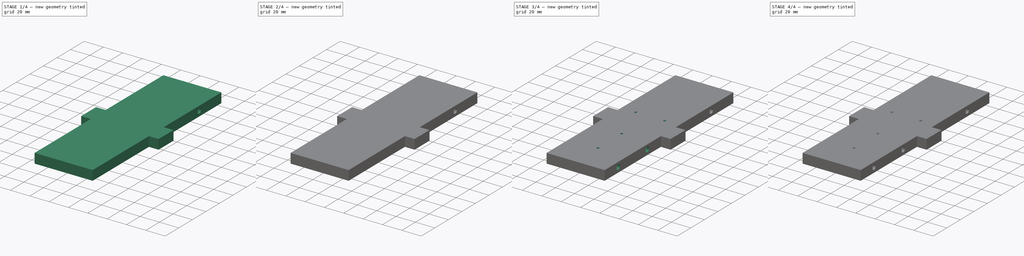
[diagram: build sequence overview — one tinted view per stage of 4, left to right]
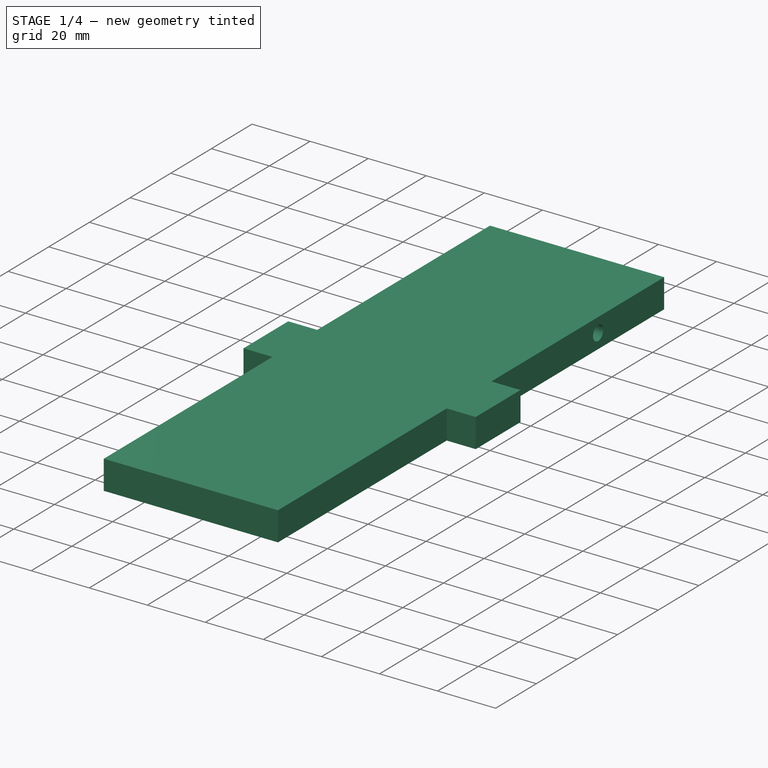
[diagram: stage 1 of 4 — iso view after this stage's code; geometry added in this stage tinted green]
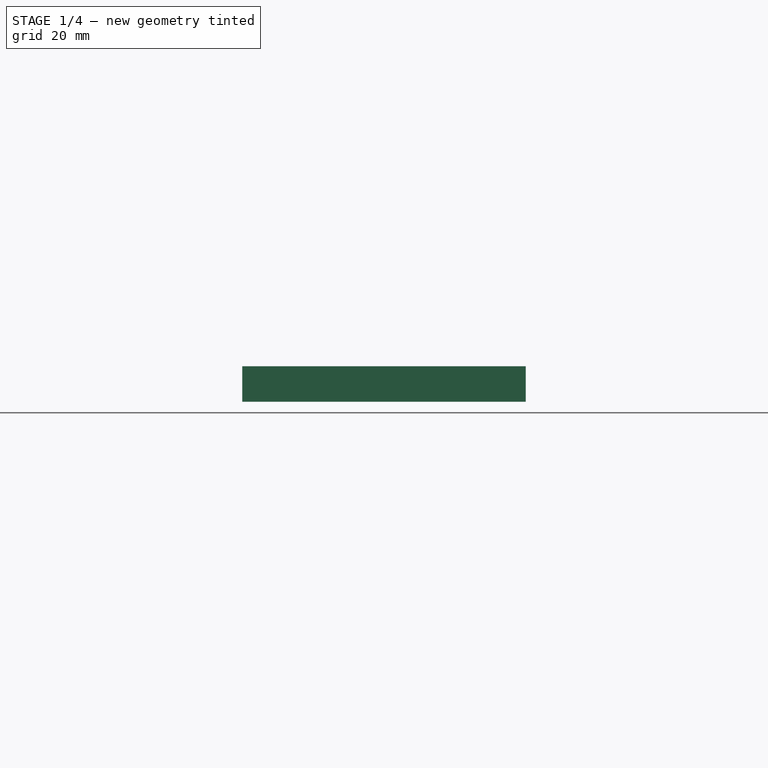
[diagram: stage 1 of 4 — front view after this stage's code; geometry added in this stage tinted green]
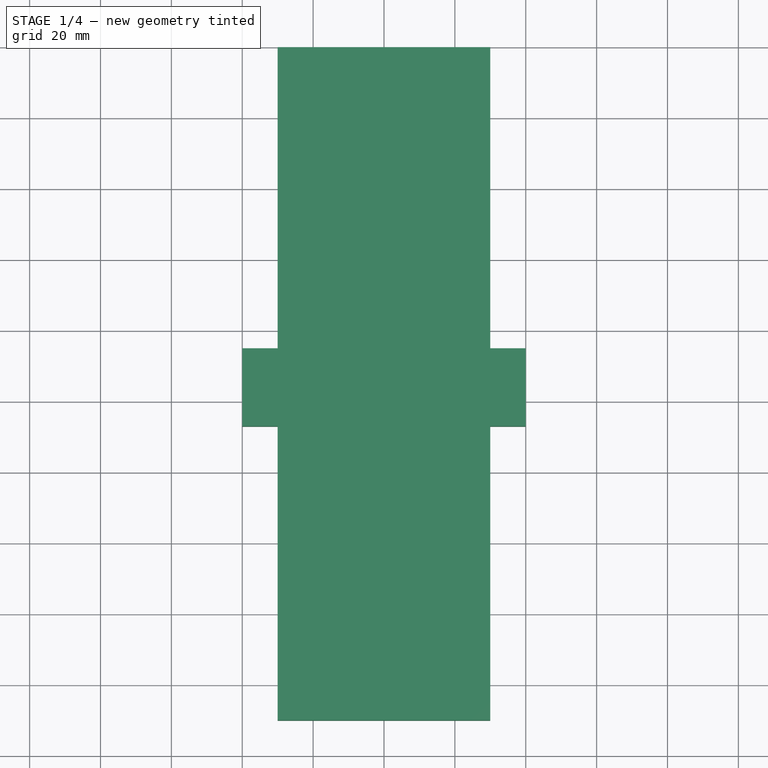
[diagram: stage 1 of 4 — top view after this stage's code; geometry added in this stage tinted green]
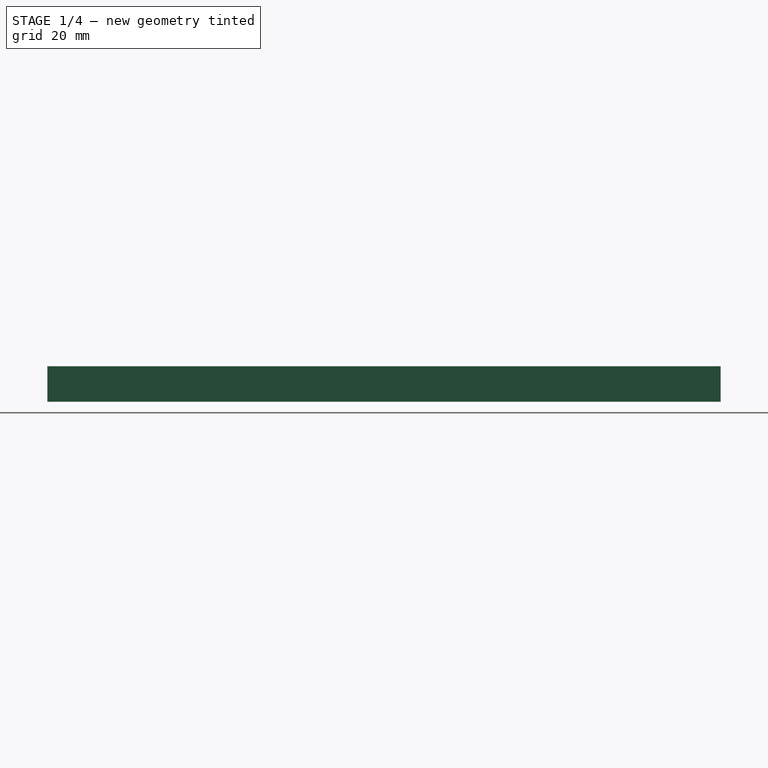
[diagram: stage 1 of 4 — right view after this stage's code; geometry added in this stage tinted green]
FCSTD DOCUMENT  (FreeCAD 0.19R)
Label: chassis
License: All rights reserved
LicenseURL: http://en.wikipedia.org/wiki/All_rights_reserved
objects: Sketcher::SketchObject×9, PartDesign::Pocket×8, PartDesign::Pad×1, PartDesign::Body×1
note: 28 computed .brp shape members not serialized (recipe doc carries the construction recipe); baked Part::Feature solids carry a one-line shape summary decoded from their .brp

FEATURE [Sketcher::SketchObject] Sketch
  MapMode = 5
  Support = -> [XY_Plane]
  sketch-geometry (12):
    g0: LineSegment StartX=30 StartY=-190 StartZ=0 EndX=30 EndY=-107 EndZ=0
    g1: LineSegment StartX=30 StartY=-107 StartZ=0 EndX=40 EndY=-107 EndZ=0
    g2: LineSegment StartX=40 StartY=-107 StartZ=0 EndX=40 EndY=-85 EndZ=0
    g3: LineSegment StartX=40 StartY=-85 StartZ=0 EndX=30 EndY=-85 EndZ=0
    g4: LineSegment StartX=30 StartY=-85 StartZ=0 EndX=30 EndY=0 EndZ=0
    g5: LineSegment StartX=30 StartY=-190 StartZ=0 EndX=-30 EndY=-190 EndZ=0
    g6: LineSegment StartX=-30 StartY=-190 StartZ=0 EndX=-30 EndY=-107 EndZ=0
    g7: LineSegment StartX=-30 StartY=-107 StartZ=0 EndX=-40 EndY=-107 EndZ=0
    g8: LineSegment StartX=-40 StartY=-107 StartZ=0 EndX=-40 EndY=-85 EndZ=0
    g9: LineSegment StartX=-40 StartY=-85 StartZ=0 EndX=-30 EndY=-85 EndZ=0
    g10: LineSegment StartX=-30 StartY=-85 StartZ=0 EndX=-30 EndY=0 EndZ=0
    g11: LineSegment StartX=-30 StartY=0 StartZ=0 EndX=30 EndY=0 EndZ=0
  constraints (35):
    c: Vertical(g0)
    c: Coincident(g1,g0)
    c: Coincident(g2,g1)
    c: Vertical(g2)
    c: Coincident(g3,g2)
    c: Horizontal(g3)
    c: Vertical(g4)
    c: DistanceY(g4,g4) = 85
    c: Coincident(g3,g4)
    c: Horizontal(g1)
    c: Equal(g3,g1)
    c: DistanceX(g3,g3) = 10
    c: DistanceY(g2,g2) = 22
    c: DistanceY(g0,g0) = 83
    c: Coincident(g5,g0)
    c: Horizontal(g5)
    c: Coincident(g6,g5)
    c: Vertical(g6)
    c: Coincident(g7,g6)
    c: Coincident(g8,g7)
    c: Vertical(g8)
    c: Horizontal(g9)
    c: Coincident(g10,g9)
    c: Vertical(g10)
    c: Coincident(g11,g10)
    c: Coincident(g11,g4)
    c: Horizontal(g11)
    c: DistanceX(g5,g5) = 60
    c: Equal(g5,g11)
    c: Equal(g4,g10)
    c: Equal(g8,g2)
    c: Coincident(g8,g9)
    c: Equal(g3,g9)
    c: Horizontal(g7)
    c: Symmetric(g10,g4,g-1)
FEATURE [PartDesign::Pad] Pad
  Length = 10
  Length2 = 100
  Profile = -> Sketch
  Type = 0
FEATURE [Sketcher::SketchObject] Sketch001
  MapMode = 5
  Placement = pos=(30,0,0) rot=(0.57735,0.57735,0.57735;2.0944rad)
  Support = -> [Pad]
  sketch-geometry (1):
    g0: Circle CenterX=-32.5 CenterY=5 CenterZ=0 NormalX=0 NormalY=0 NormalZ=1 AngleXU=0 Radius=2.5
  constraints (3):
    c: DistanceY(g-1,g0) = 5
    c: Diameter(g0) = 5
    c: DistanceX(g0,g-1) = 32.5
FEATURE [PartDesign::Pocket] Pocket
  BaseFeature = -> Pad
  Length = 10
  Length2 = 100
  Profile = -> Sketch001
  Type = 0
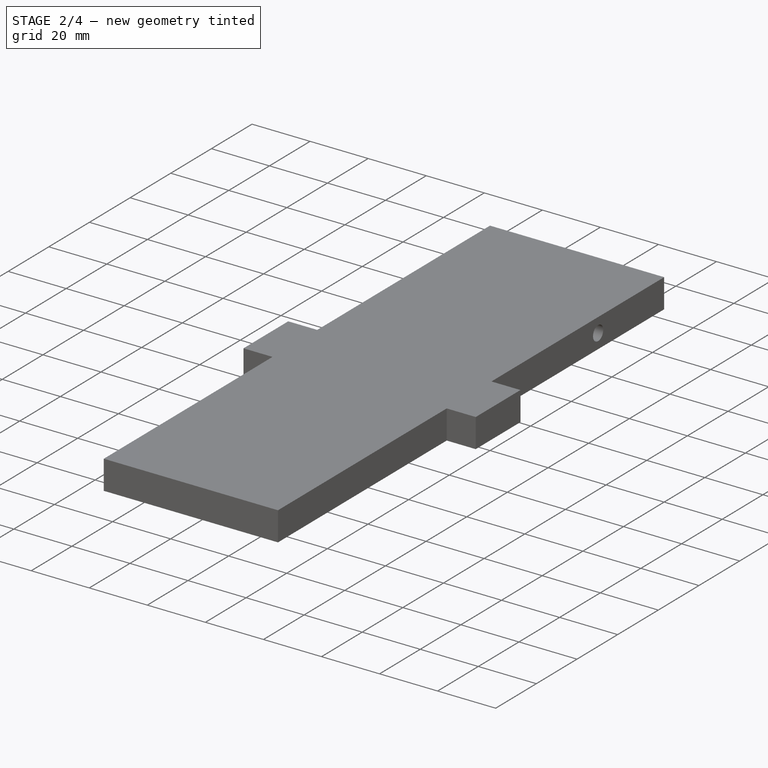
[diagram: stage 2 of 4 — iso view after this stage's code; geometry added in this stage tinted green]
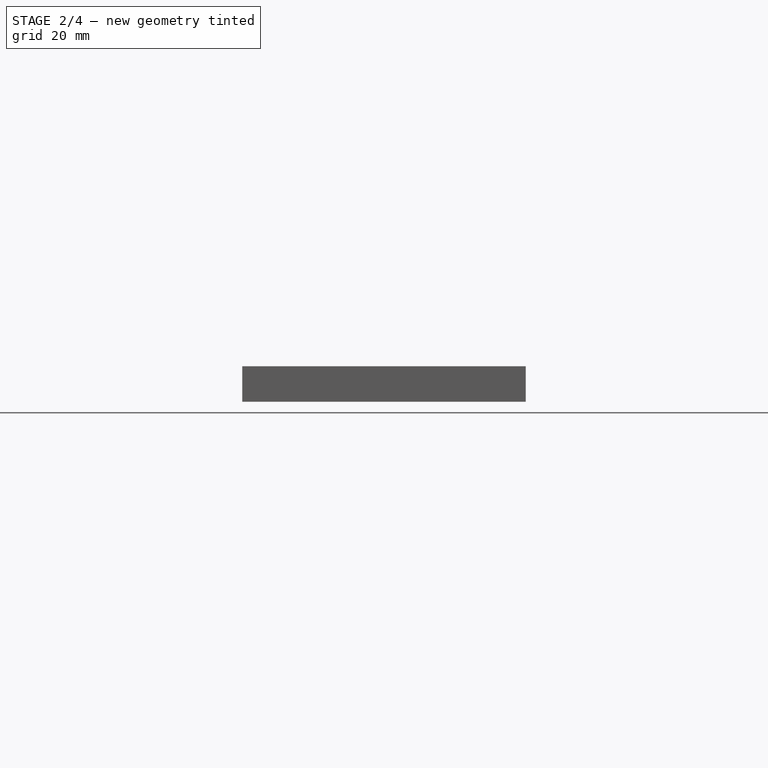
[diagram: stage 2 of 4 — front view after this stage's code; geometry added in this stage tinted green]
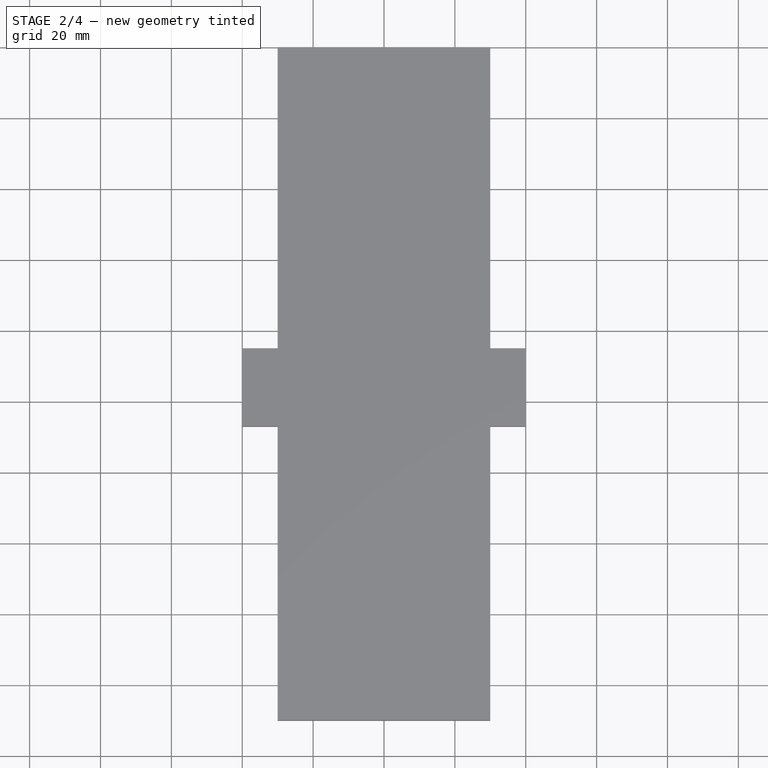
[diagram: stage 2 of 4 — top view after this stage's code; geometry added in this stage tinted green]
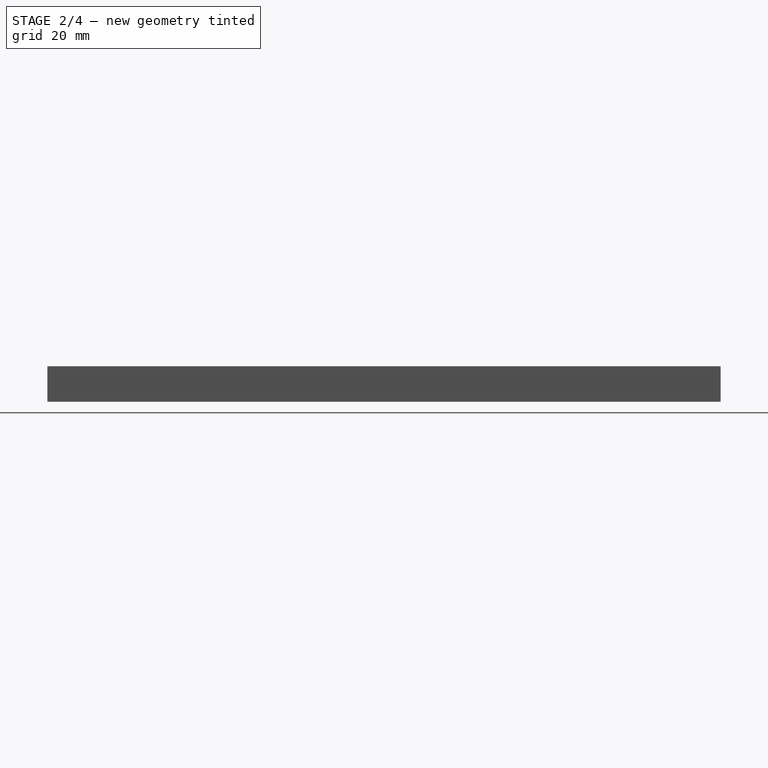
[diagram: stage 2 of 4 — right view after this stage's code; geometry added in this stage tinted green]
FEATURE [Sketcher::SketchObject] Sketch002
  MapMode = 5
  Placement = pos=(-30,0,0) rot=(0.57735,-0.57735,-0.57735;2.0944rad)
  Support = -> [Pocket]
  sketch-geometry (1):
    g0: Circle CenterX=32.5 CenterY=5 CenterZ=0 NormalX=0 NormalY=0 NormalZ=1 AngleXU=0 Radius=2.5
  constraints (3):
    c: DistanceX(g-1,g0) = 32.5
    c: DistanceY(g-1,g0) = 5
    c: Diameter(g0) = 5
FEATURE [PartDesign::Pocket] Pocket001
  BaseFeature = -> Pocket
  Length = 10
  Length2 = 100
  Profile = -> Sketch002
  Type = 0
FEATURE [Sketcher::SketchObject] Sketch003
  MapMode = 5
  Placement = pos=(-30,0,0) rot=(0.57735,-0.57735,-0.57735;2.0944rad)
  Support = -> [Pocket001]
  sketch-geometry (2):
    g0: Circle CenterX=127 CenterY=5 CenterZ=0 NormalX=0 NormalY=0 NormalZ=1 AngleXU=0 Radius=2.5
    g1: Circle CenterX=170 CenterY=5 CenterZ=0 NormalX=0 NormalY=0 NormalZ=1 AngleXU=0 Radius=2.5
  constraints (6):
    c: DistanceY(g-1,g0) = 5
    c: DistanceY(g-1,g1) = 5
    c: Diameter(g0) = 5
    c: Diameter(g1) = 5
    c: DistanceX(g-1,g0) = 127
    c: DistanceX(g-1,g1) = 170
FEATURE [PartDesign::Pocket] Pocket002
  BaseFeature = -> Pocket001
  Length = 10
  Length2 = 100
  Profile = -> Sketch003
  Type = 0
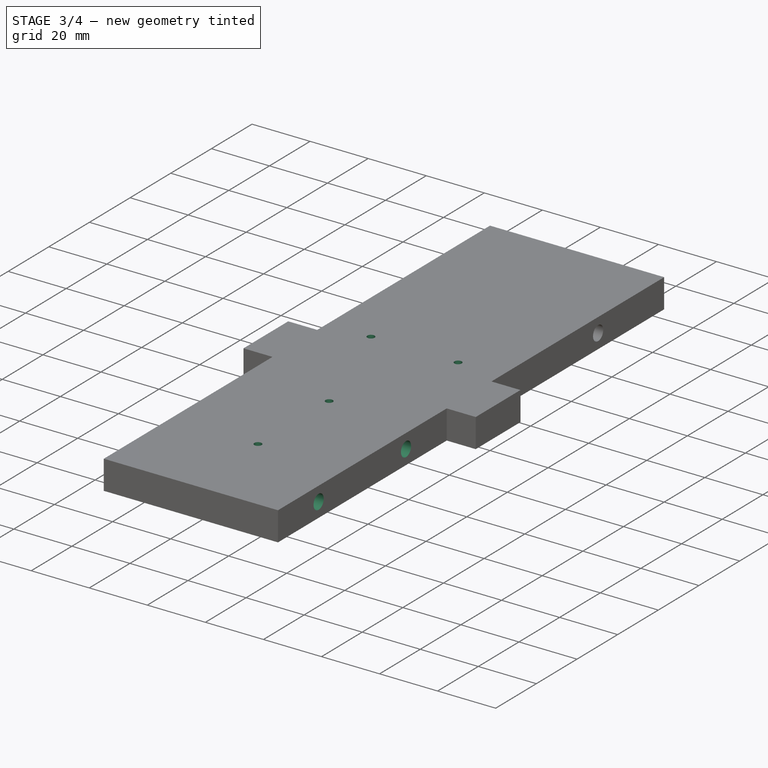
[diagram: stage 3 of 4 — iso view after this stage's code; geometry added in this stage tinted green]
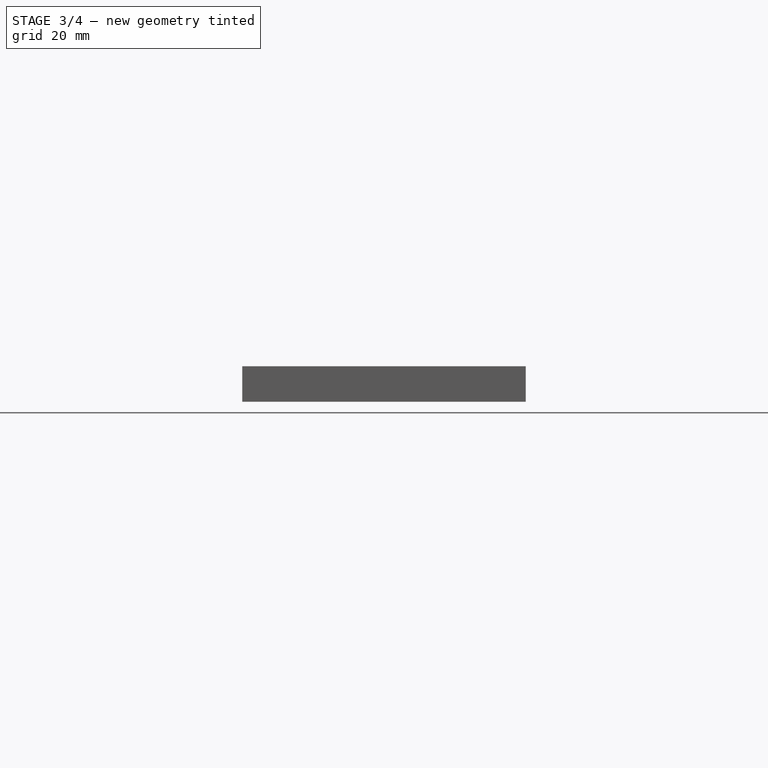
[diagram: stage 3 of 4 — front view after this stage's code; geometry added in this stage tinted green]
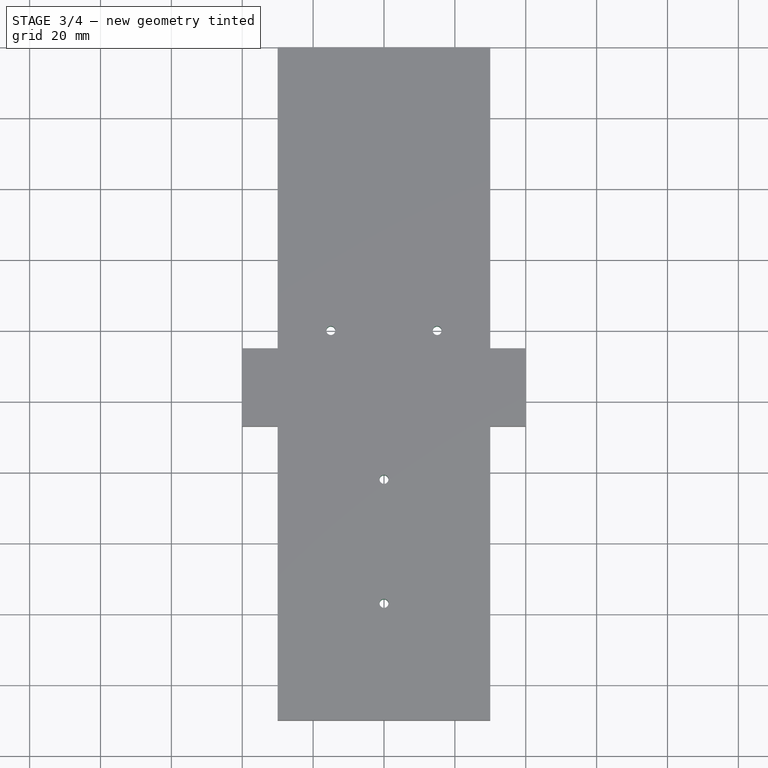
[diagram: stage 3 of 4 — top view after this stage's code; geometry added in this stage tinted green]
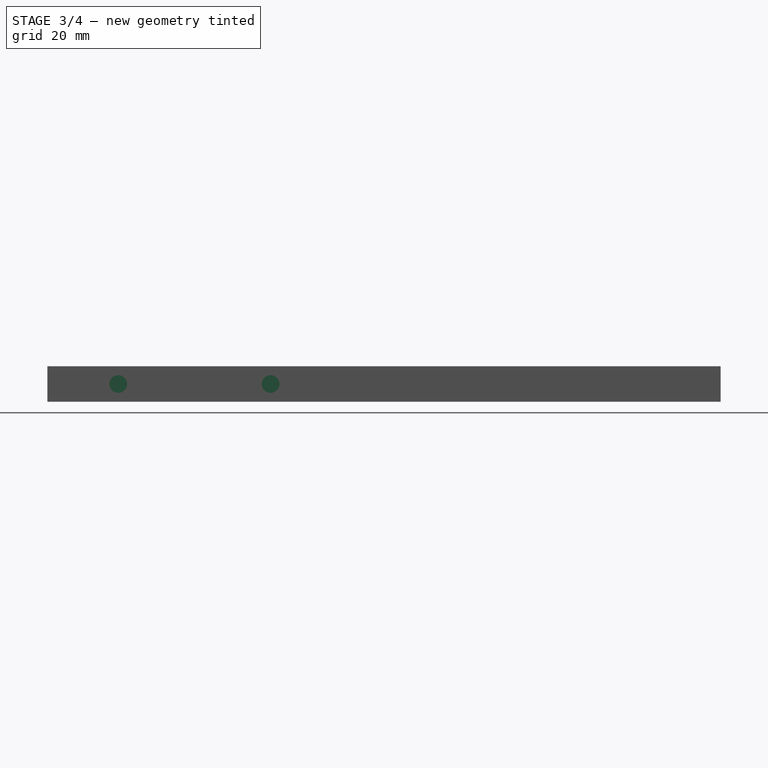
[diagram: stage 3 of 4 — right view after this stage's code; geometry added in this stage tinted green]
FEATURE [Sketcher::SketchObject] Sketch004
  MapMode = 5
  Placement = pos=(30,0,0) rot=(0.57735,0.57735,0.57735;2.0944rad)
  Support = -> [Pocket002]
  sketch-geometry (2):
    g0: Circle CenterX=-170 CenterY=5 CenterZ=0 NormalX=0 NormalY=0 NormalZ=1 AngleXU=0 Radius=2.5
    g1: Circle CenterX=-127 CenterY=5 CenterZ=0 NormalX=0 NormalY=0 NormalZ=1 AngleXU=0 Radius=2.5
  constraints (6):
    c: Diameter(g0) = 5
    c: Diameter(g1) = 5
    c: DistanceY(g-1,g1) = 5
    c: DistanceY(g-1,g0) = 5
    c: DistanceX(g1,g-1) = 127
    c: DistanceX(g0,g-1) = 170
FEATURE [PartDesign::Pocket] Pocket003
  BaseFeature = -> Pocket002
  Length = 10
  Length2 = 100
  Profile = -> Sketch004
  Type = 0
FEATURE [Sketcher::SketchObject] Sketch005
  ExternalGeometry = -> [Pocket003]
  MapMode = 5
  Placement = pos=(0,0,0) rot=(1,0,0;3.14159rad)
  Support = -> [Pocket003]
  sketch-geometry (5):
    g0: Circle CenterX=15 CenterY=80 CenterZ=0 NormalX=0 NormalY=0 NormalZ=1 AngleXU=0 Radius=1.25
    g1: Circle CenterX=-15 CenterY=80 CenterZ=0 NormalX=0 NormalY=0 NormalZ=1 AngleXU=0 Radius=1.25
    g2: LineSegment [constr] StartX=0 StartY=0 StartZ=0 EndX=0 EndY=190 EndZ=0
    g3: Circle CenterX=0 CenterY=122 CenterZ=0 NormalX=0 NormalY=0 NormalZ=1 AngleXU=0 Radius=1.25
    g4: Circle CenterX=0 CenterY=157 CenterZ=0 NormalX=0 NormalY=0 NormalZ=1 AngleXU=0 Radius=1.25
  constraints (15):
    c: Diameter(g0) = 2.5
    c: Diameter(g1) = 2.5
    c: DistanceX(g-1,g0) = 15
    c: DistanceX(g1,g-1) = 15
    c: DistanceY(g-1,g0) = 80
    c: DistanceY(g-1,g1) = 80
    c: Coincident(g2,g-1)
    c: Vertical(g2)
    c: Distance(g2) = 190
    c: Diameter(g4) = 2.5
    c: Diameter(g3) = 2.5
    c: PointOnObject(g3,g2)
    c: PointOnObject(g4,g2)
    c: Distance(g3,g-3) = 15
    c: Distance(g4,g-3) = 50
FEATURE [PartDesign::Pocket] Pocket004
  BaseFeature = -> Pocket003
  Length = 10
  Length2 = 100
  Profile = -> Sketch005
  Type = 0
FEATURE [Sketcher::SketchObject] Sketch006
  MapMode = 5
  Placement = pos=(0,0,0) rot=(0,0.707107,0.707107;3.14159rad)
  Support = -> [Pocket004]
  sketch-geometry (2):
    g0: Circle CenterX=-15 CenterY=5 CenterZ=0 NormalX=0 NormalY=0 NormalZ=1 AngleXU=0 Radius=1.25
    g1: Circle CenterX=15 CenterY=5 CenterZ=0 NormalX=0 NormalY=0 NormalZ=1 AngleXU=0 Radius=1.25
  constraints (6):
    c: DistanceY(g-1,g0) = 5
    c: DistanceY(g-1,g1) = 5
    c: Diameter(g0) = 2.5
    c: Diameter(g1) = 2.5
    c: DistanceX(g0,g-1) = 15
    c: DistanceX(g-1,g1) = 15
FEATURE [PartDesign::Pocket] Pocket005
  BaseFeature = -> Pocket004
  Length = 10
  Length2 = 100
  Profile = -> Sketch006
  Type = 0
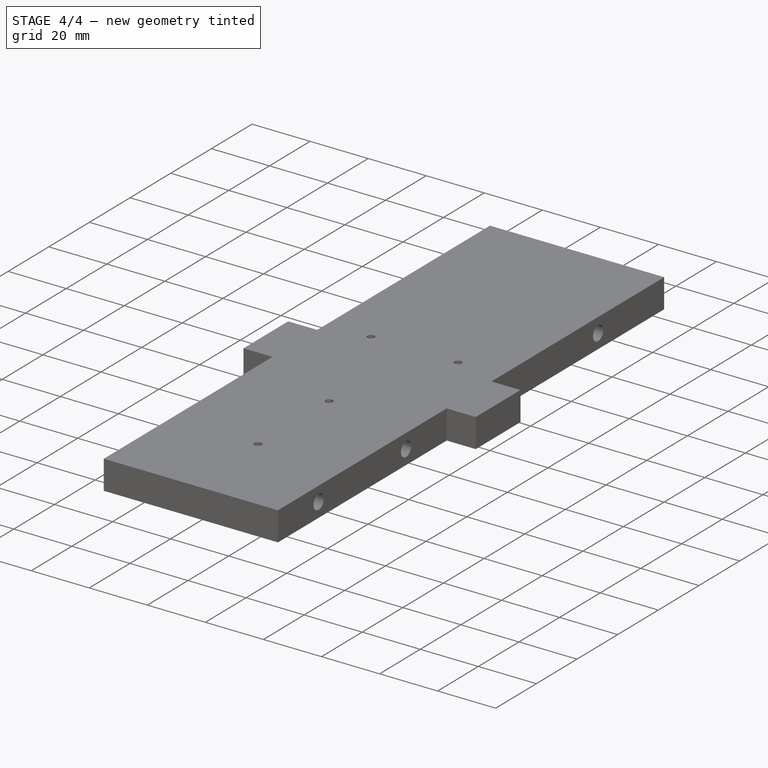
[diagram: stage 4 of 4 — iso view after this stage's code; geometry added in this stage tinted green]
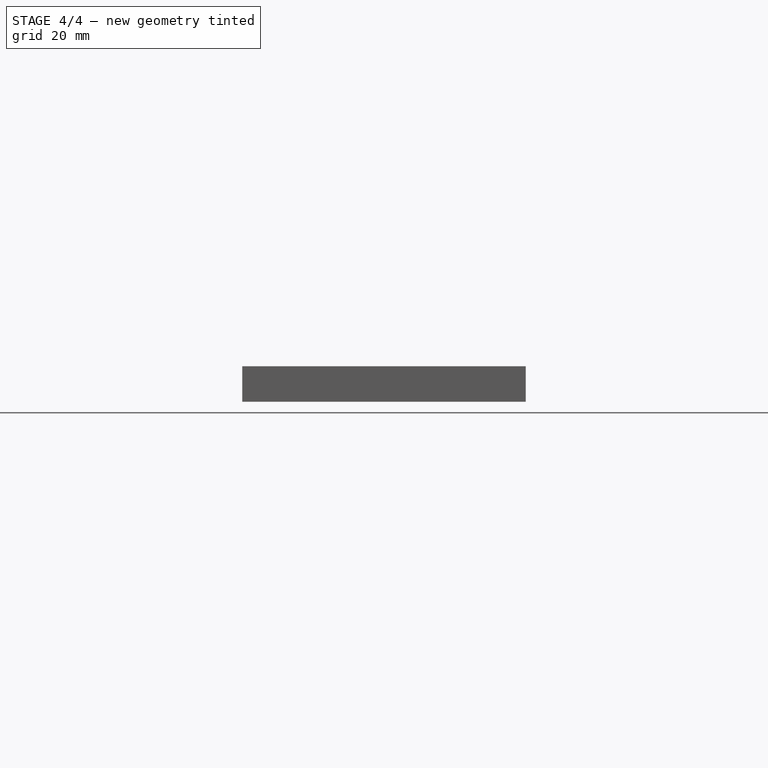
[diagram: stage 4 of 4 — front view after this stage's code; geometry added in this stage tinted green]
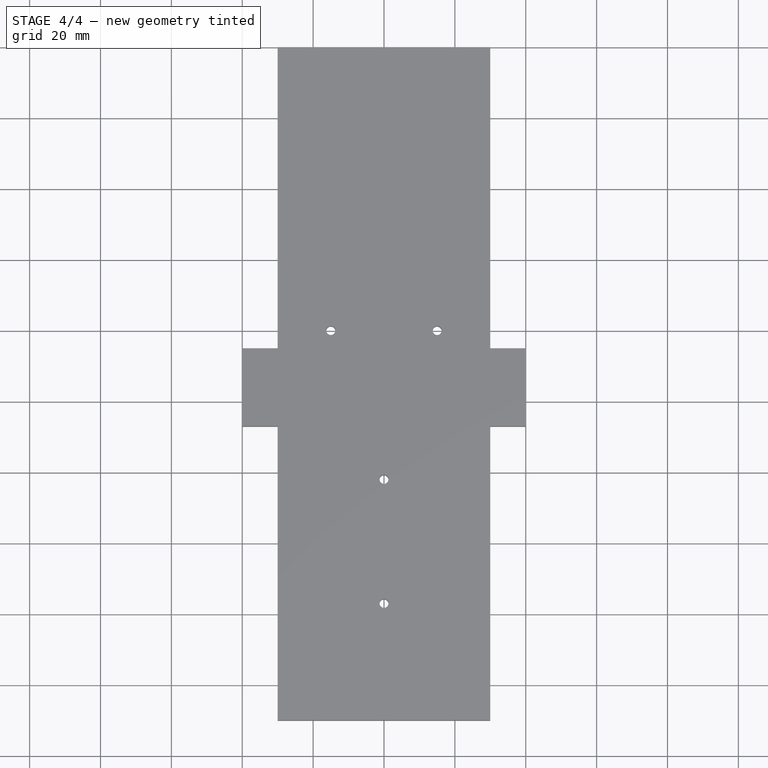
[diagram: stage 4 of 4 — top view after this stage's code; geometry added in this stage tinted green]
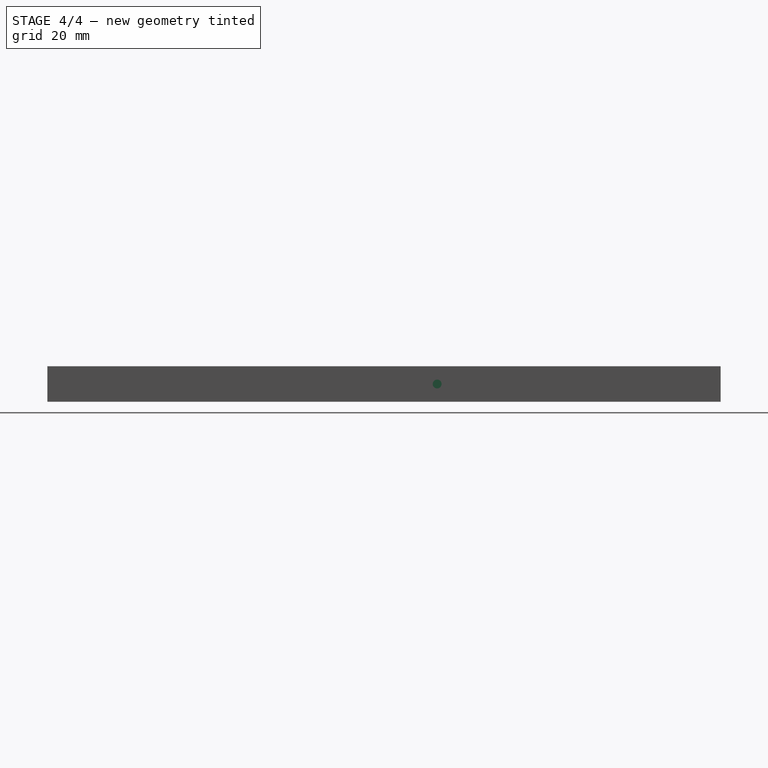
[diagram: stage 4 of 4 — right view after this stage's code; geometry added in this stage tinted green]
FEATURE [Sketcher::SketchObject] Sketch007
  ExternalGeometry = -> [Pocket005]
  MapMode = 5
  Placement = pos=(-30,0,0) rot=(0.57735,-0.57735,-0.57735;2.0944rad)
  Support = -> [Pocket005]
  sketch-geometry (1):
    g0: Circle CenterX=80 CenterY=5 CenterZ=0 NormalX=0 NormalY=0 NormalZ=1 AngleXU=0 Radius=1.25
  constraints (3):
    c: Diameter(g0) = 2.5
    c: DistanceY(g-1,g0) = 5
    c: DistanceX(g0,g-3) = 5
FEATURE [PartDesign::Pocket] Pocket006
  BaseFeature = -> Pocket005
  Length = 10
  Length2 = 100
  Profile = -> Sketch007
  Type = 0
FEATURE [Sketcher::SketchObject] Sketch008
  ExternalGeometry = -> [Pocket006]
  MapMode = 5
  Placement = pos=(30,0,0) rot=(0.57735,0.57735,0.57735;2.0944rad)
  Support = -> [Pocket006]
  sketch-geometry (1):
    g0: Circle CenterX=-80 CenterY=5 CenterZ=0 NormalX=0 NormalY=0 NormalZ=1 AngleXU=0 Radius=1.25
  constraints (3):
    c: Diameter(g0) = 2.5
    c: DistanceY(g-1,g0) = 5
    c: DistanceX(g-3,g0) = 5
FEATURE [PartDesign::Pocket] Pocket007
  BaseFeature = -> Pocket006
  Length = 10
  Length2 = 100
  Profile = -> Sketch008
  Type = 0
FEATURE [PartDesign::Body] Body
  Group = -> [Sketch,Pad,Sketch001,Pocket,Sketch002,Pocket001,Sketch003,Pocket002,Sketch004,Pocket003,Sketch005,Pocket004,Sketch006,Pocket005,Sketch007,Pocket006,Sketch008,Pocket007]
  Origin = -> Origin
  Tip = -> Pocket007
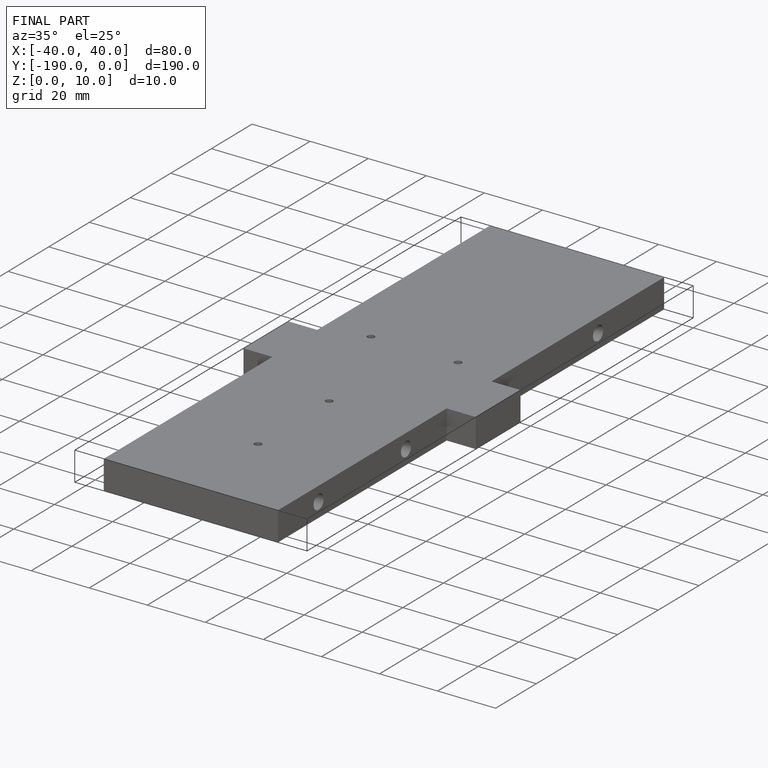
[diagram: finished part — iso view with bounding-box wireframe]
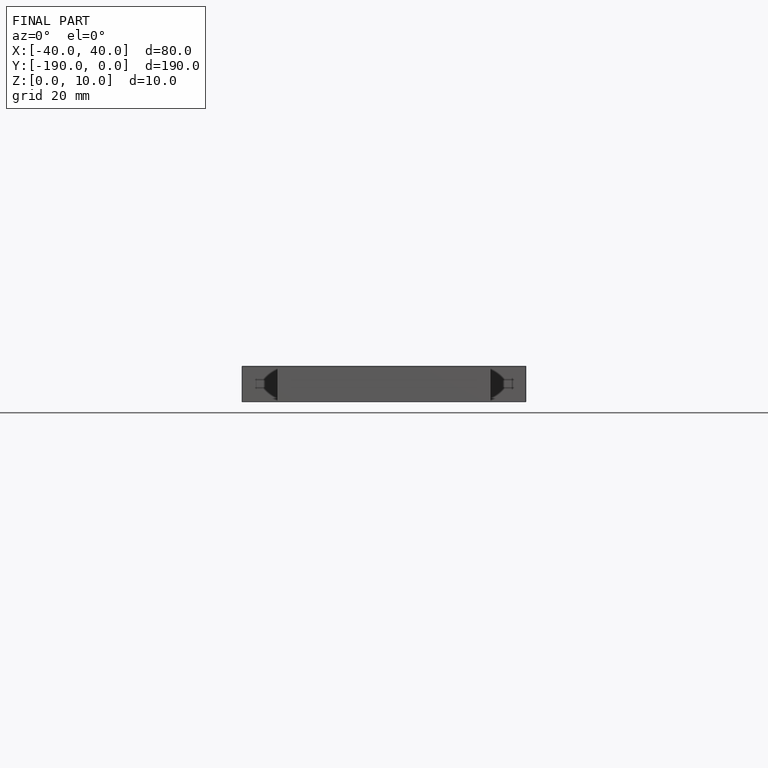
[diagram: finished part — front view with bounding-box wireframe]
